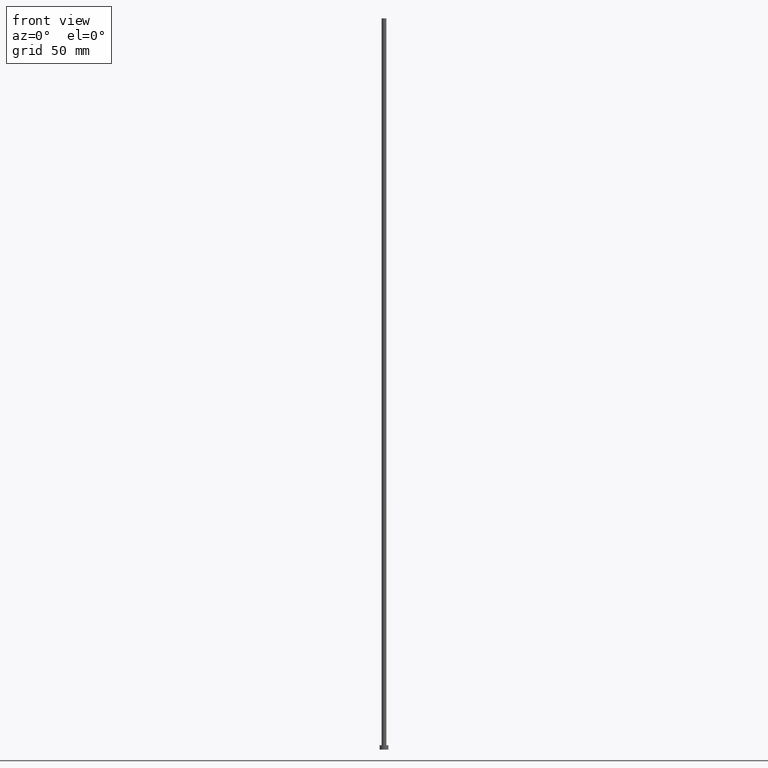
[diagram: clean part render]
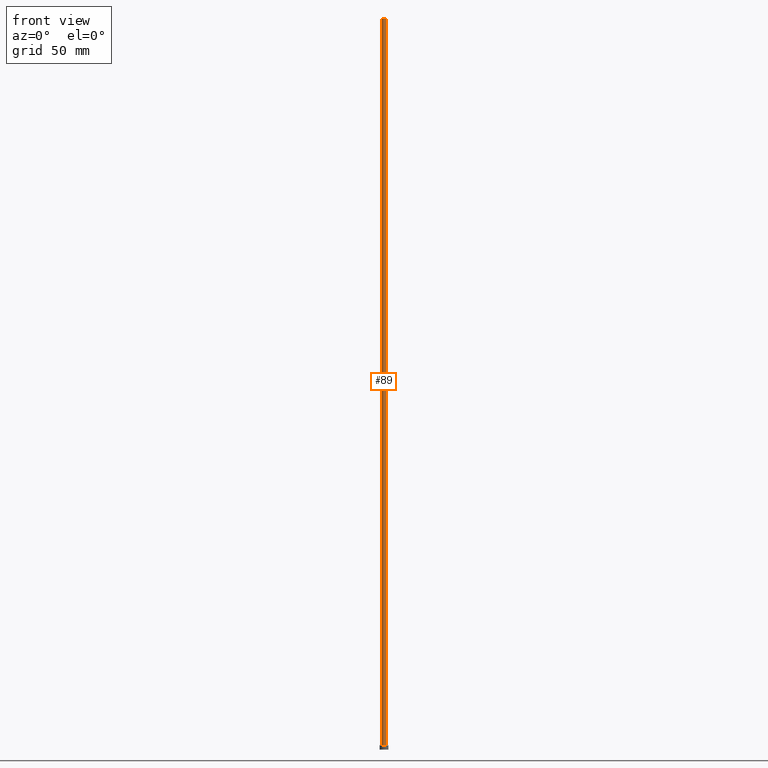
[diagram: same view with one face highlighted and labeled with its STEP entity id]
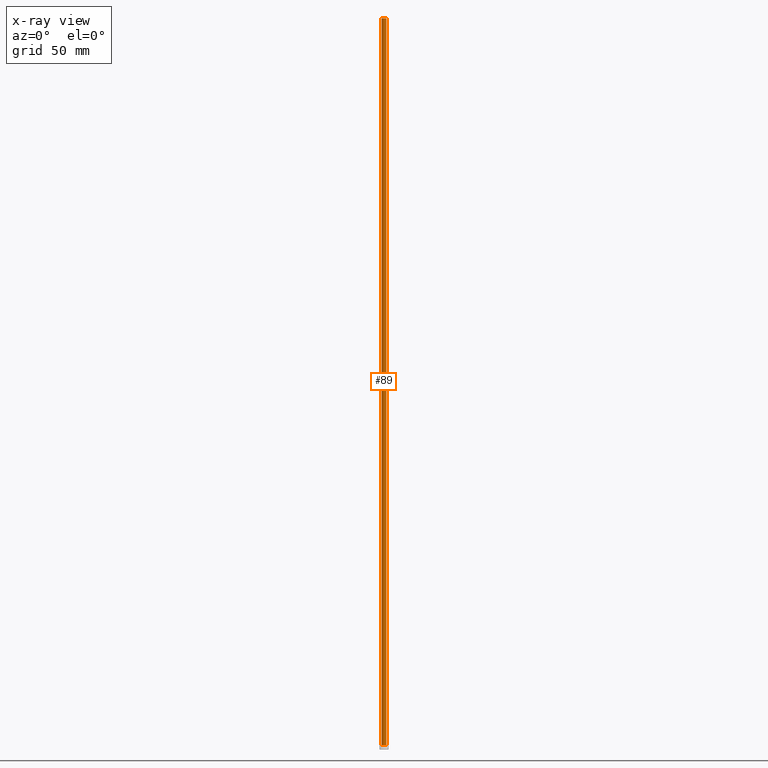
[diagram: x-ray of the same camera — body ghosted, the highlighted face saturated]
A machine part, front view. The second image highlights one B-rep face of the part: STEP entity #89.
The next image is the same camera in x-ray: the body ghosted, the highlighted face saturated — about 0% of this face is hidden behind the body in this view.
In plain terms, the highlighted cylindrical surface (edge-blend (fillet) strip) has radius 1.6 mm, axis along (-0, -0, -1).
Its self-contained STEP definition (entity closure, byte-faithful):
#1 = DIRECTION ( 'NONE',  ( 1.000000000000000000, 0.000000000000000000, 0.000000000000000000 ) ) ;
#6 = CARTESIAN_POINT ( 'NONE',  ( -1.600000000000000089, 0.000000000000000000, 3.000000000000000000 ) ) ;
#15 = DIRECTION ( 'NONE',  ( -0.000000000000000000, -0.000000000000000000, -1.000000000000000000 ) ) ;
#21 = LINE ( 'NONE', #86, #254 ) ;
#31 = VERTEX_POINT ( 'NONE', #250 ) ;
#33 = ORIENTED_EDGE ( 'NONE', *, *, #139, .F. ) ;
#42 = AXIS2_PLACEMENT_3D ( 'NONE', #111, #218, #1 ) ;
#55 = LINE ( 'NONE', #210, #212 ) ;
#73 = ORIENTED_EDGE ( 'NONE', *, *, #159, .F. ) ;
#79 = CIRCLE ( 'NONE', #123, 1.600000000000000089 ) ;
#83 = DIRECTION ( 'NONE',  ( 0.000000000000000000, 0.000000000000000000, 1.000000000000000000 ) ) ;
#86 = CARTESIAN_POINT ( 'NONE',  ( 1.600000000000000089, 1.959434878635764737E-16, 500.0000000000000000 ) ) ;
#88 = DIRECTION ( 'NONE',  ( -0.000000000000000000, -0.000000000000000000, -1.000000000000000000 ) ) ;
#89 = ADVANCED_FACE ( 'NONE', ( #99 ), #228, .T. ) ;
#99 = FACE_OUTER_BOUND ( 'NONE', #207, .T. ) ;
#110 = VERTEX_POINT ( 'NONE', #129 ) ;
#111 = CARTESIAN_POINT ( 'NONE',  ( 0.000000000000000000, 0.000000000000000000, 500.0000000000000000 ) ) ;
#119 = EDGE_CURVE ( 'NONE', #110, #224, #55, .T. ) ;
#123 = AXIS2_PLACEMENT_3D ( 'NONE', #136, #83, #199 ) ;
#126 = VERTEX_POINT ( 'NONE', #251 ) ;
#129 = CARTESIAN_POINT ( 'NONE',  ( -1.600000000000000089, 0.000000000000000000, 500.0000000000000000 ) ) ;
#136 = CARTESIAN_POINT ( 'NONE',  ( 0.000000000000000000, 0.000000000000000000, 3.000000000000000000 ) ) ;
#139 = EDGE_CURVE ( 'NONE', #110, #31, #238, .T. ) ;
#144 = EDGE_CURVE ( 'NONE', #224, #126, #79, .T. ) ;
#154 = DIRECTION ( 'NONE',  ( -0.000000000000000000, -0.000000000000000000, -1.000000000000000000 ) ) ;
#155 = ORIENTED_EDGE ( 'NONE', *, *, #119, .T. ) ;
#159 = EDGE_CURVE ( 'NONE', #31, #126, #21, .T. ) ;
#188 = ORIENTED_EDGE ( 'NONE', *, *, #144, .T. ) ;
#194 = DIRECTION ( 'NONE',  ( -1.000000000000000000, 0.000000000000000000, 0.000000000000000000 ) ) ;
#199 = DIRECTION ( 'NONE',  ( 1.000000000000000000, 0.000000000000000000, 0.000000000000000000 ) ) ;
#207 = EDGE_LOOP ( 'NONE', ( #73, #33, #155, #188 ) ) ;
#210 = CARTESIAN_POINT ( 'NONE',  ( -1.600000000000000089, 0.000000000000000000, 500.0000000000000000 ) ) ;
#212 = VECTOR ( 'NONE', #15, 1000.000000000000000 ) ;
#218 = DIRECTION ( 'NONE',  ( 0.000000000000000000, 0.000000000000000000, 1.000000000000000000 ) ) ;
#224 = VERTEX_POINT ( 'NONE', #6 ) ;
#225 = AXIS2_PLACEMENT_3D ( 'NONE', #255, #154, #194 ) ;
#228 = CYLINDRICAL_SURFACE ( 'NONE', #225, 1.600000000000000089 ) ;
#238 = CIRCLE ( 'NONE', #42, 1.600000000000000089 ) ;
#250 = CARTESIAN_POINT ( 'NONE',  ( 1.600000000000000089, 1.959434878635764737E-16, 500.0000000000000000 ) ) ;
#251 = CARTESIAN_POINT ( 'NONE',  ( 1.600000000000000089, 1.959434878635764737E-16, 3.000000000000000000 ) ) ;
#254 = VECTOR ( 'NONE', #88, 1000.000000000000000 ) ;
#255 = CARTESIAN_POINT ( 'NONE',  ( 0.000000000000000000, 0.000000000000000000, 500.0000000000000000 ) ) ;